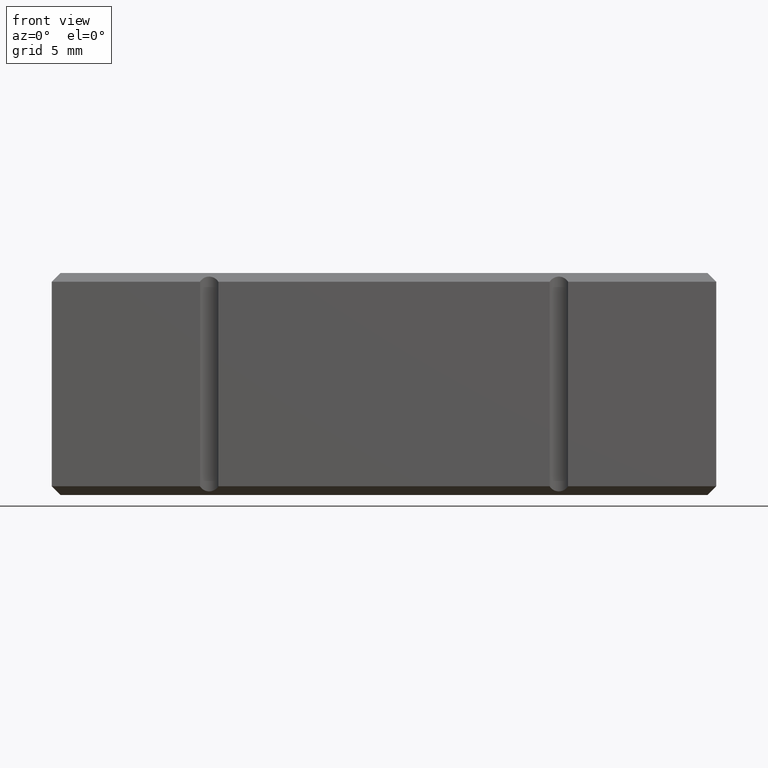
[diagram: clean part render]
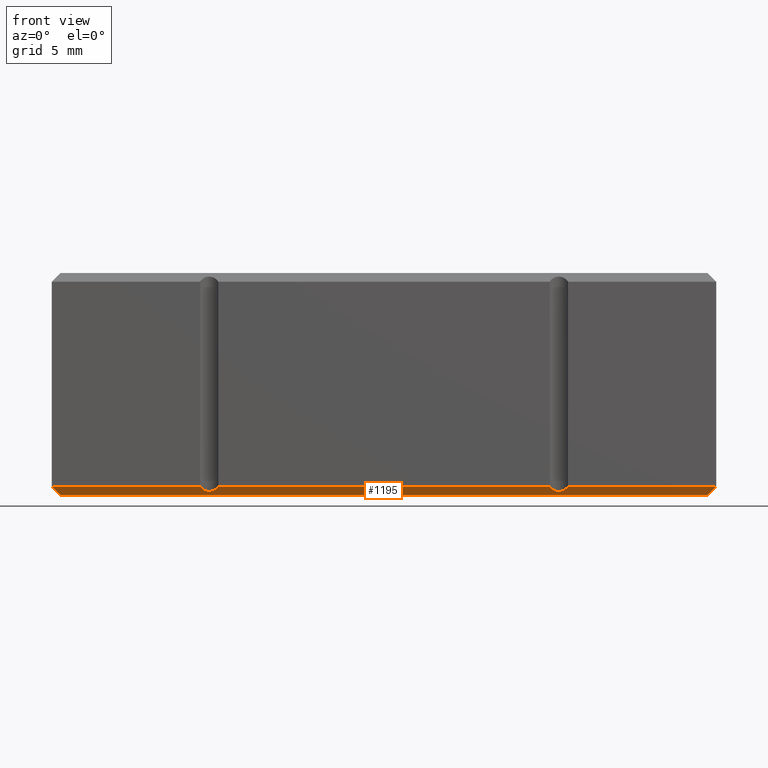
[diagram: same view with one face highlighted and labeled with its STEP entity id]
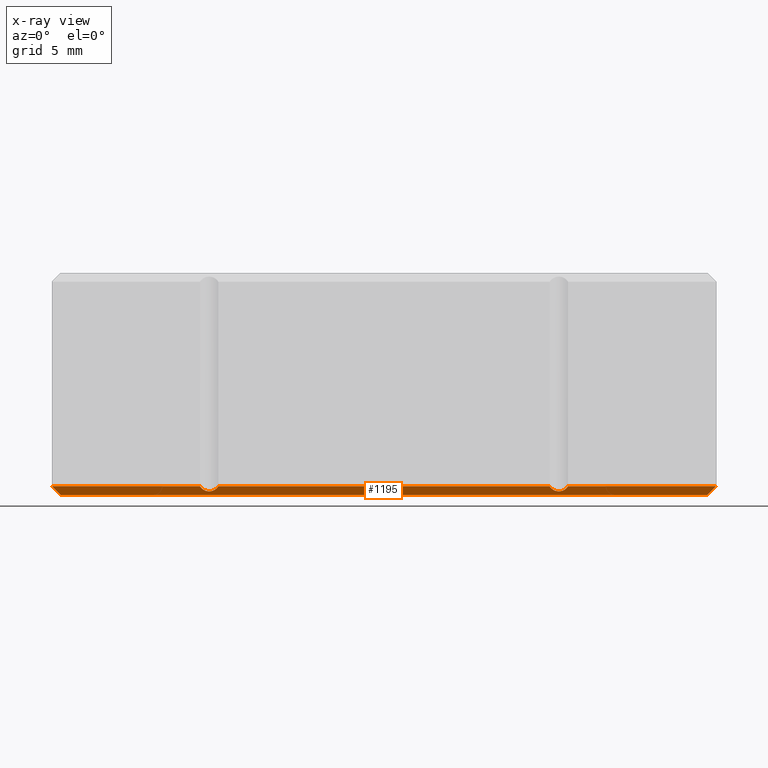
[diagram: x-ray of the same camera — body ghosted, the highlighted face saturated]
A machine part, front view. The second image highlights one B-rep face of the part: STEP entity #1195.
The next image is the same camera in x-ray: the body ghosted, the highlighted face saturated — about 0% of this face is hidden behind the body in this view.
In plain terms, the highlighted planar face has unit normal (-0, -0.7071, -0.7071).
Its self-contained STEP definition (entity closure, byte-faithful):
#24 = LINE ( 'NONE', #481, #3015 ) ;
#74 = VECTOR ( 'NONE', #1079, 1000.000000000000114 ) ;
#174 = CARTESIAN_POINT ( 'NONE',  ( 28.47331654267860301, 0.000000000000000000, 0.5000000000000004441 ) ) ;
#193 = CARTESIAN_POINT ( 'NONE',  ( 28.47331654267860301, 0.000000000000000000, 0.5000000000000004441 ) ) ;
#210 = LINE ( 'NONE', #2000, #1565 ) ;
#217 = DIRECTION ( 'NONE',  ( 1.000000000000000000, 0.000000000000000000, 0.000000000000000000 ) ) ;
#218 = CARTESIAN_POINT ( 'NONE',  ( 0.5000000000000038858, 0.5000000000000038858, 0.000000000000000000 ) ) ;
#296 = EDGE_CURVE ( 'NONE', #582, #1280, #24, .T. ) ;
#301 = ORIENTED_EDGE ( 'NONE', *, *, #598, .F. ) ;
#315 = AXIS2_PLACEMENT_3D ( 'NONE', #1794, #483, #788 ) ;
#476 = EDGE_CURVE ( 'NONE', #1574, #582, #1150, .T. ) ;
#477 = FACE_OUTER_BOUND ( 'NONE', #740, .T. ) ;
#481 = CARTESIAN_POINT ( 'NONE',  ( 38.00000000000000000, 0.000000000000000000, 0.5000000000000004441 ) ) ;
#483 = DIRECTION ( 'NONE',  ( -0.000000000000000000, -0.7071067811865451302, -0.7071067811865500152 ) ) ;
#577 = VERTEX_POINT ( 'NONE', #174 ) ;
#582 = VERTEX_POINT ( 'NONE', #1491 ) ;
#598 = EDGE_CURVE ( 'NONE', #3157, #1574, #210, .T. ) ;
#740 = EDGE_LOOP ( 'NONE', ( #3094, #2617, #3143, #2930, #748, #1445, #301, #3292 ) ) ;
#745 = CARTESIAN_POINT ( 'NONE',  ( 38.00000000000000000, 0.000000000000000000, 0.5000000000000004441 ) ) ;
#748 = ORIENTED_EDGE ( 'NONE', *, *, #296, .F. ) ;
#788 = DIRECTION ( 'NONE',  ( -1.000000000000000000, 0.000000000000000000, 0.000000000000000000 ) ) ;
#936 = CARTESIAN_POINT ( 'NONE',  ( 9.256055629790965966, 0.4307915824081399725, 0.06920841759186345532 ) ) ;
#1012 = CARTESIAN_POINT ( 'NONE',  ( 29.52331654267860017, 0.000000000000000000, 0.5000000000000004441 ) ) ;
#1041 = CARTESIAN_POINT ( 'NONE',  ( 8.476683457321398052, 0.000000000000000000, 0.5000000000000004441 ) ) ;
#1079 = DIRECTION ( 'NONE',  ( -0.5773502691896270633, -0.5773502691896270633, 0.5773502691896231775 ) ) ;
#1089 = VERTEX_POINT ( 'NONE', #1012 ) ;
#1122 = CARTESIAN_POINT ( 'NONE',  ( 38.00000000000000000, 0.000000000000000000, 0.5000000000000004441 ) ) ;
#1150 = LINE ( 'NONE', #2874, #74 ) ;
#1195 = ADVANCED_FACE ( 'NONE', ( #477 ), #2818, .T. ) ;
#1199 = CARTESIAN_POINT ( 'NONE',  ( 28.74394437020903226, 0.4307915824081399170, 0.06920841759186356634 ) ) ;
#1228 = DIRECTION ( 'NONE',  ( -1.000000000000000000, 0.000000000000000000, 0.000000000000000000 ) ) ;
#1280 = VERTEX_POINT ( 'NONE', #1041 ) ;
#1299 = VERTEX_POINT ( 'NONE', #2397 ) ;
#1417 = LINE ( 'NONE', #1122, #2702 ) ;
#1445 = ORIENTED_EDGE ( 'NONE', *, *, #476, .F. ) ;
#1471 =( BOUNDED_CURVE ( )  B_SPLINE_CURVE ( 3, ( #2772, #2001, #1199, #193 ),
 .UNSPECIFIED., .F., .T. ) 
 B_SPLINE_CURVE_WITH_KNOTS ( ( 4, 4 ),
 ( 2.131701039288081745, 4.151484267891502711 ),
 .UNSPECIFIED. ) 
 CURVE ( )  GEOMETRIC_REPRESENTATION_ITEM ( )  RATIONAL_B_SPLINE_CURVE ( ( 1.000000000000000000, 0.6879683351406546965, 0.6879683351406546965, 1.000000000000000000 ) ) 
 REPRESENTATION_ITEM ( '' )  );
#1491 = CARTESIAN_POINT ( 'NONE',  ( 0.000000000000000000, 0.000000000000000000, 0.5000000000000004441 ) ) ;
#1522 = VERTEX_POINT ( 'NONE', #745 ) ;
#1565 = VECTOR ( 'NONE', #1228, 1000.000000000000000 ) ;
#1574 = VERTEX_POINT ( 'NONE', #218 ) ;
#1751 = CARTESIAN_POINT ( 'NONE',  ( 9.526683457321398762, 0.000000000000000000, 0.5000000000000004441 ) ) ;
#1794 = CARTESIAN_POINT ( 'NONE',  ( 0.000000000000000000, 0.000000000000000000, 0.5000000000000004441 ) ) ;
#2000 = CARTESIAN_POINT ( 'NONE',  ( 0.000000000000000000, 0.5000000000000038858, 0.000000000000000000 ) ) ;
#2001 = CARTESIAN_POINT ( 'NONE',  ( 29.25268871514817448, 0.4307915824081395284, 0.06920841759186405207 ) ) ;
#2041 = LINE ( 'NONE', #2542, #2998 ) ;
#2241 = LINE ( 'NONE', #2744, #3207 ) ;
#2297 = EDGE_CURVE ( 'NONE', #1280, #1299, #2964, .T. ) ;
#2390 = DIRECTION ( 'NONE',  ( 0.5773502691896298389, -0.5773502691896257311, 0.5773502691896218453 ) ) ;
#2397 = CARTESIAN_POINT ( 'NONE',  ( 9.526683457321398762, 0.000000000000000000, 0.5000000000000004441 ) ) ;
#2542 = CARTESIAN_POINT ( 'NONE',  ( 38.00000000000000000, 0.000000000000000000, 0.5000000000000004441 ) ) ;
#2617 = ORIENTED_EDGE ( 'NONE', *, *, #2669, .T. ) ;
#2669 = EDGE_CURVE ( 'NONE', #1089, #577, #1471, .T. ) ;
#2702 = VECTOR ( 'NONE', #2390, 1000.000000000000000 ) ;
#2744 = CARTESIAN_POINT ( 'NONE',  ( 38.00000000000000000, 0.000000000000000000, 0.5000000000000004441 ) ) ;
#2772 = CARTESIAN_POINT ( 'NONE',  ( 29.52331654267860017, 0.000000000000000000, 0.5000000000000004441 ) ) ;
#2775 = EDGE_CURVE ( 'NONE', #1089, #1522, #2241, .T. ) ;
#2782 = DIRECTION ( 'NONE',  ( 1.000000000000000000, 0.000000000000000000, 0.000000000000000000 ) ) ;
#2785 = CARTESIAN_POINT ( 'NONE',  ( 37.49999999999999289, 0.5000000000000038858, 0.000000000000000000 ) ) ;
#2792 = EDGE_CURVE ( 'NONE', #1299, #577, #2041, .T. ) ;
#2818 = PLANE ( 'NONE',  #315 ) ;
#2874 = CARTESIAN_POINT ( 'NONE',  ( 0.000000000000000000, 0.000000000000000000, 0.5000000000000004441 ) ) ;
#2916 = EDGE_CURVE ( 'NONE', #3157, #1522, #1417, .T. ) ;
#2930 = ORIENTED_EDGE ( 'NONE', *, *, #2297, .F. ) ;
#2964 =( BOUNDED_CURVE ( )  B_SPLINE_CURVE ( 3, ( #3267, #3020, #936, #1751 ),
 .UNSPECIFIED., .F., .T. ) 
 B_SPLINE_CURVE_WITH_KNOTS ( ( 4, 4 ),
 ( 2.131701039288081301, 4.151484267891503599 ),
 .UNSPECIFIED. ) 
 CURVE ( )  GEOMETRIC_REPRESENTATION_ITEM ( )  RATIONAL_B_SPLINE_CURVE ( ( 1.000000000000000000, 0.6879683351406544745, 0.6879683351406544745, 1.000000000000000000 ) ) 
 REPRESENTATION_ITEM ( '' )  );
#2998 = VECTOR ( 'NONE', #3251, 1000.000000000000000 ) ;
#3015 = VECTOR ( 'NONE', #2782, 1000.000000000000000 ) ;
#3020 = CARTESIAN_POINT ( 'NONE',  ( 8.747311284851830848, 0.4307915824081395839, 0.06920841759186388553 ) ) ;
#3094 = ORIENTED_EDGE ( 'NONE', *, *, #2775, .F. ) ;
#3143 = ORIENTED_EDGE ( 'NONE', *, *, #2792, .F. ) ;
#3157 = VERTEX_POINT ( 'NONE', #2785 ) ;
#3207 = VECTOR ( 'NONE', #217, 1000.000000000000000 ) ;
#3251 = DIRECTION ( 'NONE',  ( 1.000000000000000000, 0.000000000000000000, 0.000000000000000000 ) ) ;
#3267 = CARTESIAN_POINT ( 'NONE',  ( 8.476683457321398052, 0.000000000000000000, 0.5000000000000004441 ) ) ;
#3292 = ORIENTED_EDGE ( 'NONE', *, *, #2916, .T. ) ;